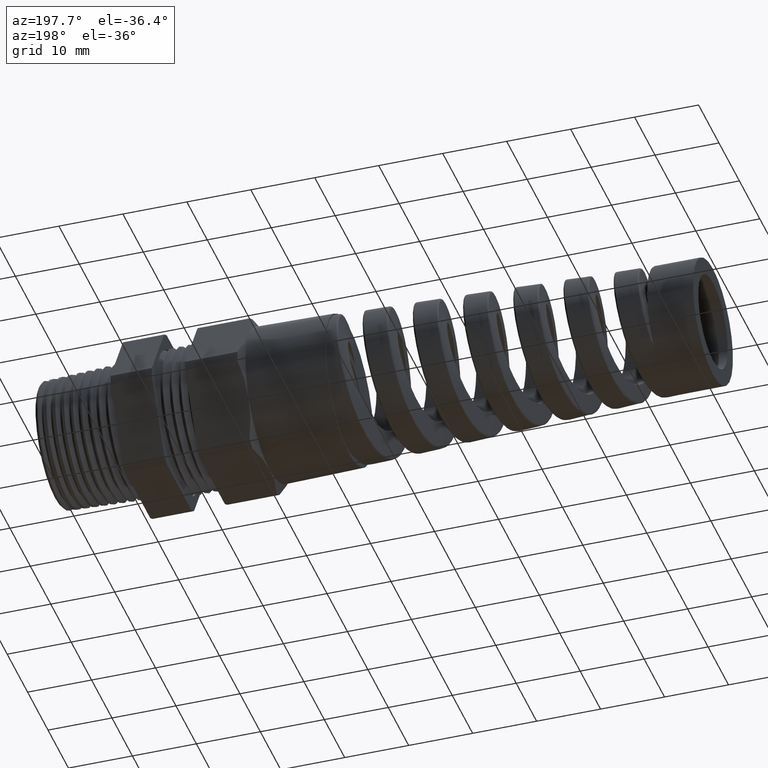
[diagram: clean part render]
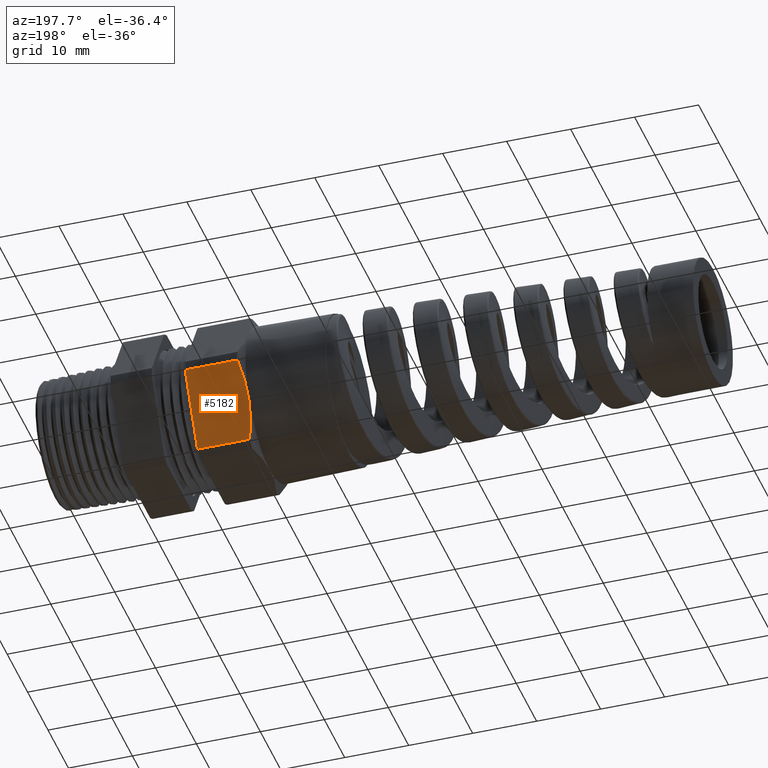
[diagram: same view with one face highlighted and labeled with its STEP entity id]
A machine part, auxiliary view. The second image highlights one B-rep face of the part: STEP entity #5182.
In plain terms, the highlighted planar face has unit normal (0, 0.866, -0.5).
Its self-contained STEP definition (entity closure, byte-faithful):
#4269 = EDGE_CURVE ( 'NONE', #6429, #4855, #6916, .T. ) ;
#4270 = ORIENTED_EDGE ( 'NONE', *, *, #4269, .T. ) ;
#4271 = ORIENTED_EDGE ( 'NONE', *, *, #6409, .T. ) ;
#4377 = ORIENTED_EDGE ( 'NONE', *, *, #4379, .T. ) ;
#4379 = EDGE_CURVE ( 'NONE', #5165, #4902, #6912, .T. ) ;
#4853 = VERTEX_POINT ( 'NONE', #11089 ) ;
#4855 = VERTEX_POINT ( 'NONE', #11088 ) ;
#4872 = EDGE_CURVE ( 'NONE', #4853, #4855, #11063, .T. ) ;
#4902 = VERTEX_POINT ( 'NONE', #11127 ) ;
#5165 = VERTEX_POINT ( 'NONE', #11487 ) ;
#5166 = ORIENTED_EDGE ( 'NONE', *, *, #4872, .F. ) ;
#5167 = ORIENTED_EDGE ( 'NONE', *, *, #5169, .T. ) ;
#5169 = EDGE_CURVE ( 'NONE', #4853, #5165, #11480, .T. ) ;
#5178 = EDGE_LOOP ( 'NONE', ( #5166, #5167, #4377, #4271, #4270 ) ) ;
#5182 = ADVANCED_FACE ( 'NONE', ( #11516 ), #11515, .T. ) ;
#6409 = EDGE_CURVE ( 'NONE', #4902, #6429, #7574, .T. ) ;
#6429 = VERTEX_POINT ( 'NONE', #7682 ) ;
#6901 = CARTESIAN_POINT ( 'NONE',  ( -0.7799374448177052200, 0.5255614297801199900, -0.02970090112228959000 ) ) ;
#6902 = CARTESIAN_POINT ( 'NONE',  ( -0.7900271810860453000, 0.5061583836853467100, -0.06330796278003797400 ) ) ;
#6903 = CARTESIAN_POINT ( 'NONE',  ( -0.7982229591427910700, 0.4866002124151254100, -0.09718370912319485000 ) ) ;
#6904 = CARTESIAN_POINT ( 'NONE',  ( -0.8066667942091405600, 0.4569476339447771100, -0.1485434816092610600 ) ) ;
#6905 = CARTESIAN_POINT ( 'NONE',  ( -0.8088394445155459000, 0.4470108610952939800, -0.1657544770478365200 ) ) ;
#6906 = CARTESIAN_POINT ( 'NONE',  ( -0.8117608953203717700, 0.4270206945807670800, -0.2003784611027595300 ) ) ;
#6907 = CARTESIAN_POINT ( 'NONE',  ( -0.8124999999999998900, 0.4169912288112728700, -0.2177500053882963600 ) ) ;
#6908 = CARTESIAN_POINT ( 'NONE',  ( -0.8125000000000000000, 0.4070319397786862400, -0.2350000000000001000 ) ) ;
#6912 = B_SPLINE_CURVE_WITH_KNOTS ( 'NONE', 3,
 ( #6908, #6907, #6906, #6905, #6904, #6903, #6902, #6901 ),
 .UNSPECIFIED., .F., .F.,
 ( 4, 2, 2, 4 ),
 ( 0.006075914357643904900, 0.007584561484949377600, 0.009093208612254851200, 0.01211050286686580000 ),
 .UNSPECIFIED. ) ;
#6913 = DIRECTION ( 'NONE',  ( 0.0000000000000000000, -0.5000000000000000000, -0.8660254037844386000 ) ) ;
#6914 = VECTOR ( 'NONE', #6913, 39.37007874015748900 ) ;
#6915 = CARTESIAN_POINT ( 'NONE',  ( -0.4591666666666666700, 0.5170069397786861700, -0.04451771243761273900 ) ) ;
#6916 = LINE ( 'NONE', #6915, #6914 ) ;
#7571 = DIRECTION ( 'NONE',  ( 1.000000000000000000, 0.0000000000000000000, 0.0000000000000000000 ) ) ;
#7572 = VECTOR ( 'NONE', #7571, 39.37007874015748100 ) ;
#7573 = CARTESIAN_POINT ( 'NONE',  ( -2.316272878851058700, 0.5255614297801198800, -0.02970090112228958000 ) ) ;
#7574 = LINE ( 'NONE', #7573, #7572 ) ;
#7682 = CARTESIAN_POINT ( 'NONE',  ( -0.4591666666666666700, 0.5255614297801199900, -0.02970090112228958300 ) ) ;
#11062 = CARTESIAN_POINT ( 'NONE',  ( -2.316272878851058700, 0.2885024497772524200, -0.4402990988777104000 ) ) ;
#11063 = LINE ( 'NONE', #11062, #11126 ) ;
#11088 = CARTESIAN_POINT ( 'NONE',  ( -0.4591666666666665600, 0.2885024497772524200, -0.4402990988777104000 ) ) ;
#11089 = CARTESIAN_POINT ( 'NONE',  ( -0.7799374448177052200, 0.2885024497772525300, -0.4402990988777105200 ) ) ;
#11125 = DIRECTION ( 'NONE',  ( 1.000000000000000000, 0.0000000000000000000, 0.0000000000000000000 ) ) ;
#11126 = VECTOR ( 'NONE', #11125, 39.37007874015748100 ) ;
#11127 = CARTESIAN_POINT ( 'NONE',  ( -0.7799374448177052200, 0.5255614297801199900, -0.02970090112228959000 ) ) ;
#11471 = CARTESIAN_POINT ( 'NONE',  ( -0.8125000000000000000, 0.4070319397786862400, -0.2350000000000001000 ) ) ;
#11472 = CARTESIAN_POINT ( 'NONE',  ( -0.8124999999999994400, 0.3869777354411504900, -0.2697349008179796800 ) ) ;
#11473 = CARTESIAN_POINT ( 'NONE',  ( -0.8094967120180416300, 0.3670891542369592600, -0.3041829339540985100 ) ) ;
#11474 = CARTESIAN_POINT ( 'NONE',  ( -0.7982716181294378100, 0.3275997788457698500, -0.3725805384907987000 ) ) ;
#11475 = CARTESIAN_POINT ( 'NONE',  ( -0.7900750716247754200, 0.3079975916717097000, -0.4065325226157460700 ) ) ;
#11476 = CARTESIAN_POINT ( 'NONE',  ( -0.7799374448177052200, 0.2885024497772525300, -0.4402990988777105200 ) ) ;
#11480 = B_SPLINE_CURVE_WITH_KNOTS ( 'NONE', 3,
 ( #11476, #11475, #11474, #11473, #11472, #11471 ),
 .UNSPECIFIED., .F., .F.,
 ( 4, 2, 4 ),
 ( 2.361309699361977000E-007, 0.003038075244306921800, 0.006075914357643904900 ),
 .UNSPECIFIED. ) ;
#11487 = CARTESIAN_POINT ( 'NONE',  ( -0.8125000000000000000, 0.4070319397786862400, -0.2350000000000001000 ) ) ;
#11511 = DIRECTION ( 'NONE',  ( 0.0000000000000000000, 0.5000000000000000000, 0.8660254037844386000 ) ) ;
#11512 = DIRECTION ( 'NONE',  ( 0.0000000000000000000, 0.8660254037844387100, -0.5000000000000001100 ) ) ;
#11513 = CARTESIAN_POINT ( 'NONE',  ( -2.316272878851058700, 0.2885024497772524200, -0.4402990988777104600 ) ) ;
#11514 = AXIS2_PLACEMENT_3D ( 'NONE', #11513, #11512, #11511 ) ;
#11515 = PLANE ( 'NONE',  #11514 ) ;
#11516 = FACE_OUTER_BOUND ( 'NONE', #5178, .T. ) ;